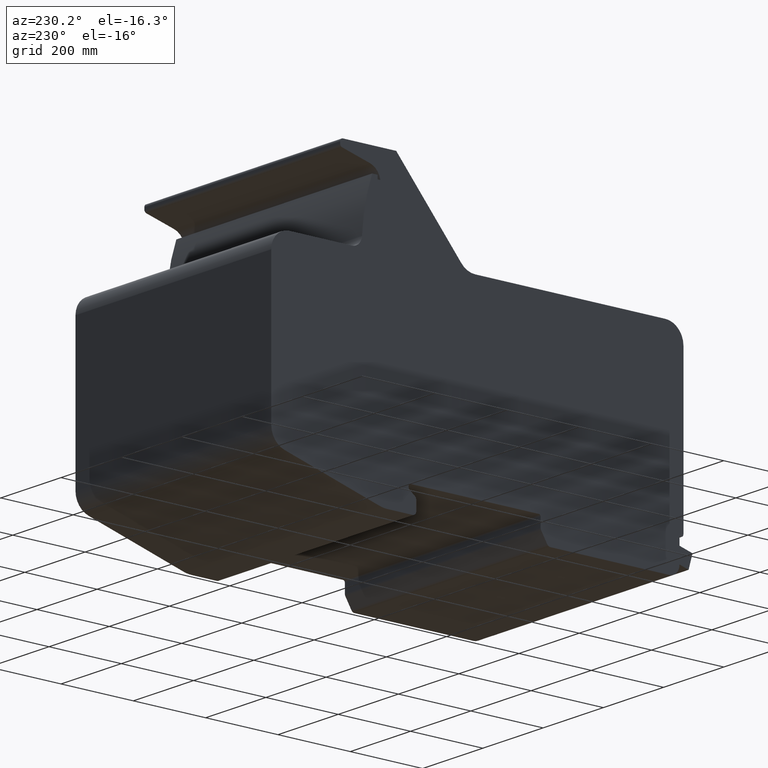
[diagram: clean part render]
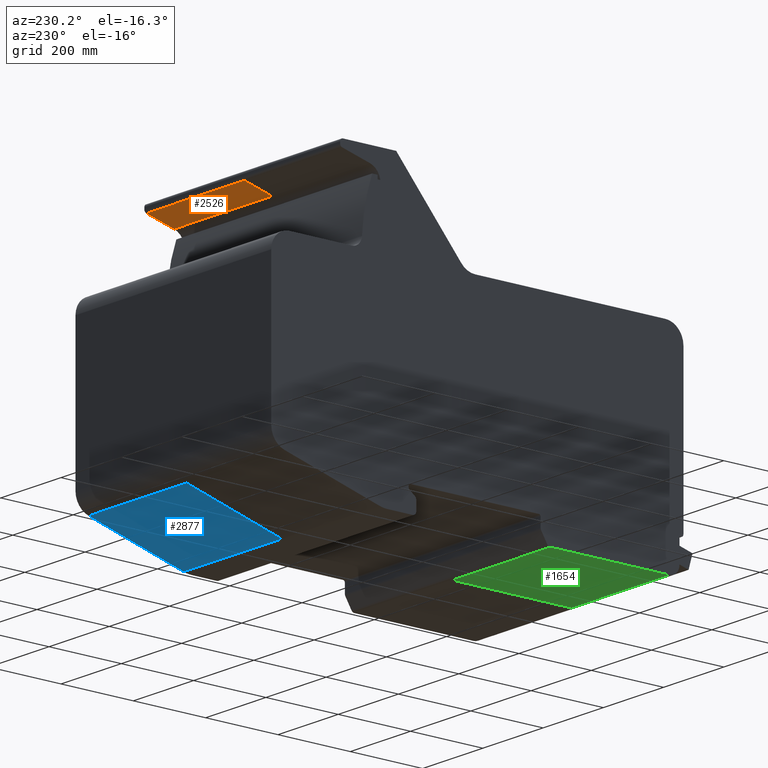
[diagram: same view with three faces highlighted in distinct colors, each labeled with its STEP entity id]
A machine part, auxiliary view with three faces highlighted in distinct colors.
Their STEP definitions:

[orange] entity #2526 — the highlighted planar face has unit normal (0, 0.2588, -0.9659).
#2468=CARTESIAN_POINT('',(650.00000000000023,188.94114283828685,709.83569924060805));
#2469=VERTEX_POINT('',#2468);
#2477=CARTESIAN_POINT('',(325.00000000000011,188.94114283828685,709.83569924060805));
#2478=VERTEX_POINT('',#2477);
#2479=CARTESIAN_POINT('',(325.00000000000011,188.94114283828685,709.83569924060805));
#2480=DIRECTION('',(1.0,0.0,0.0));
#2481=VECTOR('',#2480,325.00000000000011);
#2482=LINE('',#2479,#2481);
#2483=EDGE_CURVE('',#2478,#2469,#2482,.T.);
#2496=CARTESIAN_POINT('',(325.00000000000011,188.94114283828685,709.83569924060805));
#2497=DIRECTION('',(0.0,0.258819045102975,-0.965925826288947));
#2498=DIRECTION('',(-1.0,0.0,0.0));
#2499=AXIS2_PLACEMENT_3D('',#2496,#2497,#2498);
#2500=PLANE('',#2499);
#2501=CARTESIAN_POINT('',(650.00000000000023,112.45723819590467,689.34189875766424));
#2502=VERTEX_POINT('',#2501);
#2503=CARTESIAN_POINT('',(650.00000000000023,188.94114283828685,709.83569924060805));
#2504=DIRECTION('',(0.0,-0.965925826288947,-0.258819045102974));
#2505=VECTOR('',#2504,79.181964661024423);
#2506=LINE('',#2503,#2505);
#2507=EDGE_CURVE('',#2469,#2502,#2506,.T.);
#2508=ORIENTED_EDGE('',*,*,#2507,.T.);
#2509=CARTESIAN_POINT('',(325.00000000000011,112.45723819590467,689.34189875766424));
#2510=VERTEX_POINT('',#2509);
#2511=CARTESIAN_POINT('',(325.00000000000011,112.45723819590467,689.34189875766424));
#2512=DIRECTION('',(1.0,0.0,0.0));
#2513=VECTOR('',#2512,325.00000000000011);
#2514=LINE('',#2511,#2513);
#2515=EDGE_CURVE('',#2510,#2502,#2514,.T.);
#2516=ORIENTED_EDGE('',*,*,#2515,.F.);
#2517=CARTESIAN_POINT('',(325.00000000000011,188.94114283828685,709.83569924060805));
#2518=DIRECTION('',(0.0,-0.965925826288947,-0.258819045102974));
#2519=VECTOR('',#2518,79.181964661024423);
#2520=LINE('',#2517,#2519);
#2521=EDGE_CURVE('',#2478,#2510,#2520,.T.);
#2522=ORIENTED_EDGE('',*,*,#2521,.F.);
#2523=ORIENTED_EDGE('',*,*,#2483,.T.);
#2524=EDGE_LOOP('',(#2508,#2516,#2522,#2523));
#2525=FACE_OUTER_BOUND('',#2524,.T.);
#2526=ADVANCED_FACE('',(#2525),#2500,.T.);

[blue] entity #2877 — the highlighted planar face has unit normal (0, 0.2731, -0.962).
#2819=CARTESIAN_POINT('',(650.00000000000023,348.65406519679937,10.182444313917918));
#2820=VERTEX_POINT('',#2819);
#2828=CARTESIAN_POINT('',(325.00000000000011,348.65406519679937,10.182444313917918));
#2829=VERTEX_POINT('',#2828);
#2830=CARTESIAN_POINT('',(325.00000000000011,348.65406519679937,10.182444313917918));
#2831=DIRECTION('',(1.0,0.0,0.0));
#2832=VECTOR('',#2831,325.00000000000011);
#2833=LINE('',#2830,#2832);
#2834=EDGE_CURVE('',#2829,#2820,#2833,.T.);
#2847=CARTESIAN_POINT('',(325.00000000000011,348.65406519679937,10.182444313917918));
#2848=DIRECTION('',(0.0,0.273081303935922,-0.961990957047236));
#2849=DIRECTION('',(-1.0,0.0,0.0));
#2850=AXIS2_PLACEMENT_3D('',#2847,#2848,#2849);
#2851=PLANE('',#2850);
#2852=CARTESIAN_POINT('',(650.00000000000023,85.711639377584561,-64.459276563776129));
#2853=VERTEX_POINT('',#2852);
#2854=CARTESIAN_POINT('',(650.00000000000023,348.65406519679937,10.182444313917918));
#2855=DIRECTION('',(0.0,-0.961990957047236,-0.273081303935922));
#2856=VECTOR('',#2855,273.33149432745012);
#2857=LINE('',#2854,#2856);
#2858=EDGE_CURVE('',#2820,#2853,#2857,.T.);
#2859=ORIENTED_EDGE('',*,*,#2858,.T.);
#2860=CARTESIAN_POINT('',(325.00000000000011,85.711639377584561,-64.459276563776129));
#2861=VERTEX_POINT('',#2860);
#2862=CARTESIAN_POINT('',(325.00000000000011,85.711639377584561,-64.459276563776129));
#2863=DIRECTION('',(1.0,0.0,0.0));
#2864=VECTOR('',#2863,325.00000000000011);
#2865=LINE('',#2862,#2864);
#2866=EDGE_CURVE('',#2861,#2853,#2865,.T.);
#2867=ORIENTED_EDGE('',*,*,#2866,.F.);
#2868=CARTESIAN_POINT('',(325.00000000000011,348.65406519679937,10.182444313917918));
#2869=DIRECTION('',(0.0,-0.961990957047236,-0.273081303935922));
#2870=VECTOR('',#2869,273.33149432745012);
#2871=LINE('',#2868,#2870);
#2872=EDGE_CURVE('',#2829,#2861,#2871,.T.);
#2873=ORIENTED_EDGE('',*,*,#2872,.F.);
#2874=ORIENTED_EDGE('',*,*,#2834,.T.);
#2875=EDGE_LOOP('',(#2859,#2867,#2873,#2874));
#2876=FACE_OUTER_BOUND('',#2875,.T.);
#2877=ADVANCED_FACE('',(#2876),#2851,.T.);

[green] entity #1654 — the highlighted planar face has unit normal (0, 0, -1).
#1596=CARTESIAN_POINT('',(325.00000000000011,-386.66190378969986,-67.500000000000128));
#1597=VERTEX_POINT('',#1596);
#1605=CARTESIAN_POINT('',(0.0,-386.66190378969986,-67.500000000000128));
#1606=VERTEX_POINT('',#1605);
#1607=CARTESIAN_POINT('',(0.0,-386.66190378969986,-67.500000000000128));
#1608=DIRECTION('',(1.0,0.0,0.0));
#1609=VECTOR('',#1608,325.00000000000011);
#1610=LINE('',#1607,#1609);
#1611=EDGE_CURVE('',#1606,#1597,#1610,.T.);
#1624=CARTESIAN_POINT('',(0.0,-386.66190378969986,-67.500000000000128));
#1625=DIRECTION('',(0.0,0.0,-1.0));
#1626=DIRECTION('',(-1.0,0.0,0.0));
#1627=AXIS2_PLACEMENT_3D('',#1624,#1625,#1626);
#1628=PLANE('',#1627);
#1629=CARTESIAN_POINT('',(325.00000000000011,-716.00000000000023,-67.500000000000142));
#1630=VERTEX_POINT('',#1629);
#1631=CARTESIAN_POINT('',(325.00000000000011,-386.66190378969986,-67.500000000000128));
#1632=DIRECTION('',(0.0,-1.0,0.0));
#1633=VECTOR('',#1632,329.33809621030036);
#1634=LINE('',#1631,#1633);
#1635=EDGE_CURVE('',#1597,#1630,#1634,.T.);
#1636=ORIENTED_EDGE('',*,*,#1635,.T.);
#1637=CARTESIAN_POINT('',(0.0,-716.00000000000023,-67.500000000000142));
#1638=VERTEX_POINT('',#1637);
#1639=CARTESIAN_POINT('',(0.0,-716.00000000000023,-67.500000000000142));
#1640=DIRECTION('',(1.0,0.0,0.0));
#1641=VECTOR('',#1640,325.00000000000011);
#1642=LINE('',#1639,#1641);
#1643=EDGE_CURVE('',#1638,#1630,#1642,.T.);
#1644=ORIENTED_EDGE('',*,*,#1643,.F.);
#1645=CARTESIAN_POINT('',(0.0,-386.66190378969986,-67.500000000000128));
#1646=DIRECTION('',(0.0,-1.0,0.0));
#1647=VECTOR('',#1646,329.33809621030036);
#1648=LINE('',#1645,#1647);
#1649=EDGE_CURVE('',#1606,#1638,#1648,.T.);
#1650=ORIENTED_EDGE('',*,*,#1649,.F.);
#1651=ORIENTED_EDGE('',*,*,#1611,.T.);
#1652=EDGE_LOOP('',(#1636,#1644,#1650,#1651));
#1653=FACE_OUTER_BOUND('',#1652,.T.);
#1654=ADVANCED_FACE('',(#1653),#1628,.T.);